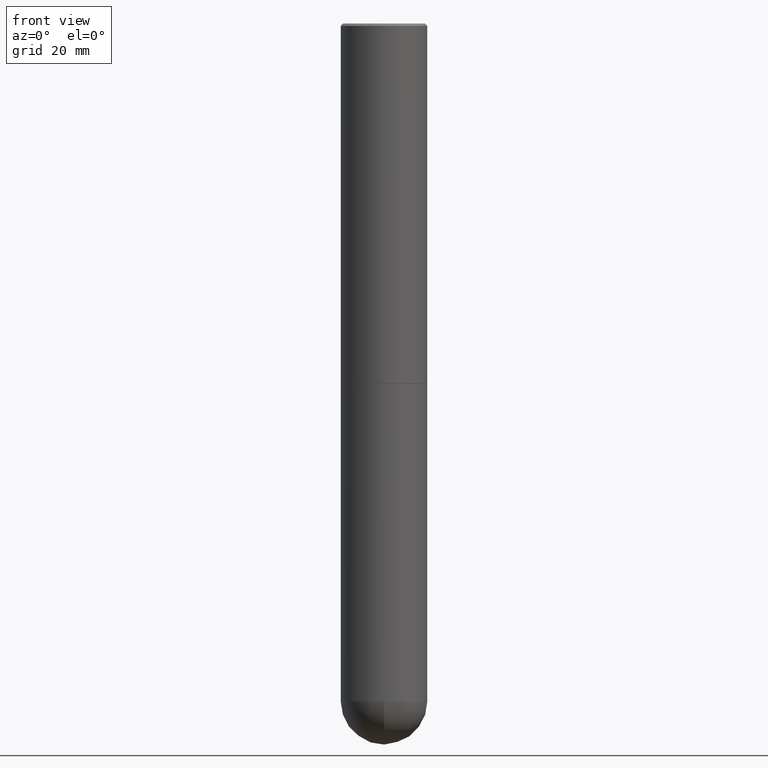
[diagram: clean part render]
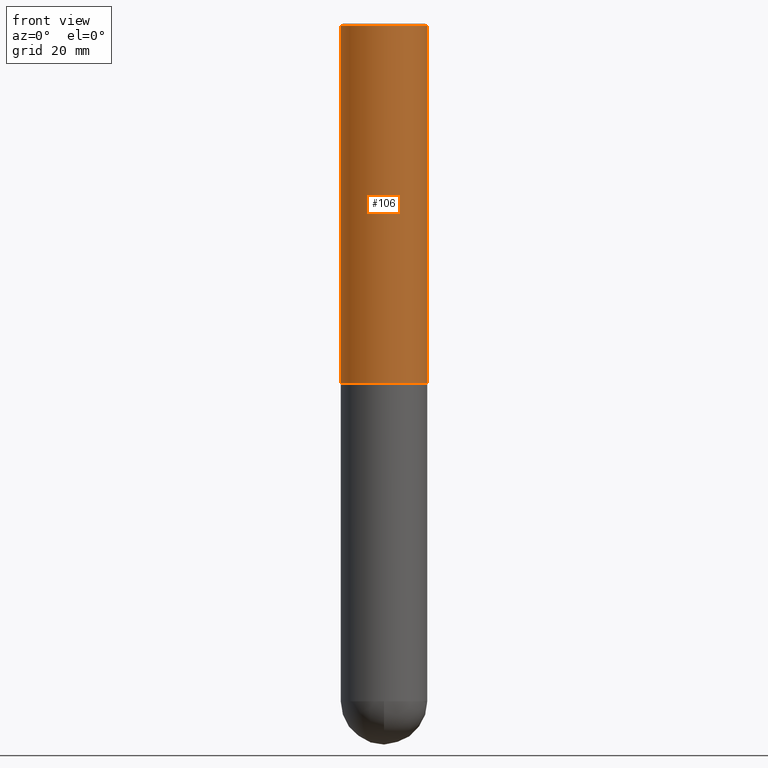
[diagram: same view with one face highlighted and labeled with its STEP entity id]
A machine part, front view. The second image highlights one B-rep face of the part: STEP entity #106.
In plain terms, the highlighted cylindrical surface (partial cylindrical patch) has radius 9.0005 mm, axis along (-0, 0, 1).
Its self-contained STEP definition (entity closure, byte-faithful):
#10 = ORIENTED_EDGE ( 'NONE', *, *, #351, .F. ) ;
#25 = CARTESIAN_POINT ( 'NONE',  ( -0.3543499999999999983, 2.404583198061265396E-15, -0.02000000000000008021 ) ) ;
#52 = ORIENTED_EDGE ( 'NONE', *, *, #119, .T. ) ;
#57 = DIRECTION ( 'NONE',  ( 1.000000000000000000, -6.982962677686266711E-15, 4.876176775795935793E-29 ) ) ;
#59 = DIRECTION ( 'NONE',  ( 1.000000000000000000, -6.982962677686266711E-15, 0.000000000000000000 ) ) ;
#66 = DIRECTION ( 'NONE',  ( -2.445468806185136877E-29, 3.491481338843145188E-15, 1.000000000000000000 ) ) ;
#67 = DIRECTION ( 'NONE',  ( -2.445468806185136597E-29, 3.491481338843145583E-15, 1.000000000000000000 ) ) ;
#74 = AXIS2_PLACEMENT_3D ( 'NONE', #94, #274, #219 ) ;
#85 = VERTEX_POINT ( 'NONE', #380 ) ;
#92 = CYLINDRICAL_SURFACE ( 'NONE', #234, 0.3543500000000002204 ) ;
#94 = CARTESIAN_POINT ( 'NONE',  ( 7.218290275216666916E-29, -1.030580546786331359E-14, -2.951700000000000212 ) ) ;
#106 = ADVANCED_FACE ( 'NONE', ( #404 ), #92, .T. ) ;
#119 = EDGE_CURVE ( 'NONE', #211, #85, #333, .T. ) ;
#140 = VECTOR ( 'NONE', #154, 39.37007874015748143 ) ;
#144 = VERTEX_POINT ( 'NONE', #216 ) ;
#154 = DIRECTION ( 'NONE',  ( -2.445468806185136877E-29, 3.491481338843145188E-15, 1.000000000000000000 ) ) ;
#172 = VERTEX_POINT ( 'NONE', #25 ) ;
#173 = ORIENTED_EDGE ( 'NONE', *, *, #395, .F. ) ;
#174 = EDGE_CURVE ( 'NONE', #85, #144, #317, .T. ) ;
#178 = CARTESIAN_POINT ( 'NONE',  ( -0.3543500000000004424, -2.670009363154166740E-15, -2.951700000000000212 ) ) ;
#179 = CARTESIAN_POINT ( 'NONE',  ( 0.000000000000000000, 0.000000000000000000, 0.000000000000000000 ) ) ;
#181 = CARTESIAN_POINT ( 'NONE',  ( 0.3543500000000002204, -2.474412824838130272E-15, 1.727873240503290870E-29 ) ) ;
#194 = CARTESIAN_POINT ( 'NONE',  ( -0.3543500000000002204, 2.517808184165916574E-15, -1.743024649231827187E-29 ) ) ;
#211 = VERTEX_POINT ( 'NONE', #178 ) ;
#216 = CARTESIAN_POINT ( 'NONE',  ( 0.3543499999999999983, -2.500847092287205690E-15, -0.02000000000000008021 ) ) ;
#219 = DIRECTION ( 'NONE',  ( 1.000000000000000000, -6.982962677686268288E-15, 0.000000000000000000 ) ) ;
#234 = AXIS2_PLACEMENT_3D ( 'NONE', #179, #67, #57 ) ;
#260 = LINE ( 'NONE', #194, #319 ) ;
#274 = DIRECTION ( 'NONE',  ( -2.445468806185136597E-29, 3.491481338843145583E-15, 1.000000000000000000 ) ) ;
#292 = ORIENTED_EDGE ( 'NONE', *, *, #174, .T. ) ;
#317 = LINE ( 'NONE', #181, #140 ) ;
#319 = VECTOR ( 'NONE', #66, 39.37007874015748143 ) ;
#333 = CIRCLE ( 'NONE', #74, 0.3543500000000004424 ) ;
#342 = DIRECTION ( 'NONE',  ( -2.445468806185136597E-29, 3.491481338843145583E-15, 1.000000000000000000 ) ) ;
#344 = AXIS2_PLACEMENT_3D ( 'NONE', #373, #342, #59 ) ;
#351 = EDGE_CURVE ( 'NONE', #172, #144, #393, .T. ) ;
#373 = CARTESIAN_POINT ( 'NONE',  ( 4.890937612370293302E-31, -6.982962677686318726E-17, -0.02000000000000008021 ) ) ;
#380 = CARTESIAN_POINT ( 'NONE',  ( 0.3543500000000004424, -1.278021829270144662E-14, -2.951700000000000212 ) ) ;
#387 = EDGE_LOOP ( 'NONE', ( #173, #52, #292, #10 ) ) ;
#393 = CIRCLE ( 'NONE', #344, 0.3543499999999999983 ) ;
#395 = EDGE_CURVE ( 'NONE', #211, #172, #260, .T. ) ;
#404 = FACE_OUTER_BOUND ( 'NONE', #387, .T. ) ;